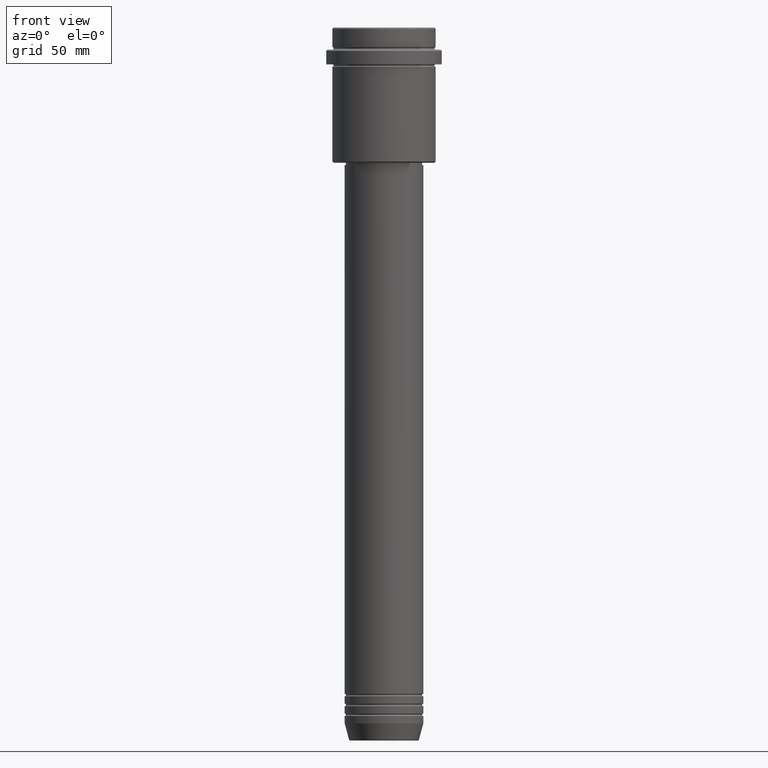
[diagram: clean part render]
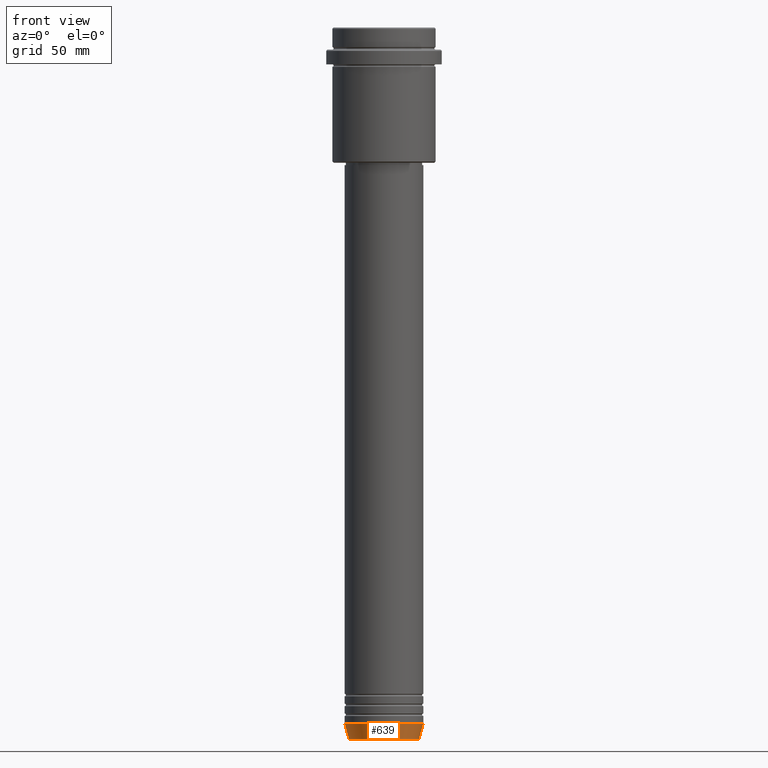
[diagram: same view with one face highlighted and labeled with its STEP entity id]
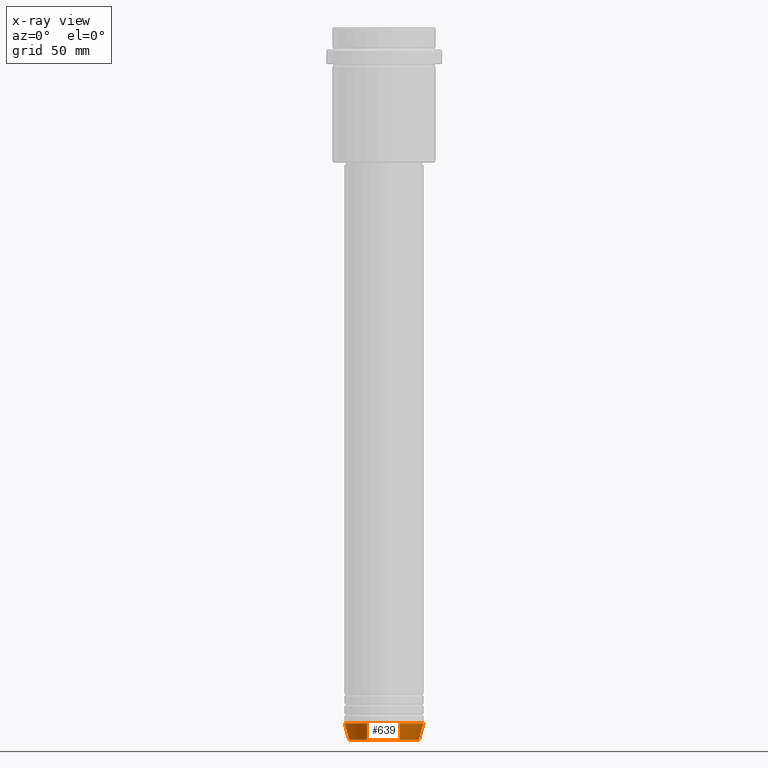
[diagram: x-ray of the same camera — body ghosted, the highlighted face saturated]
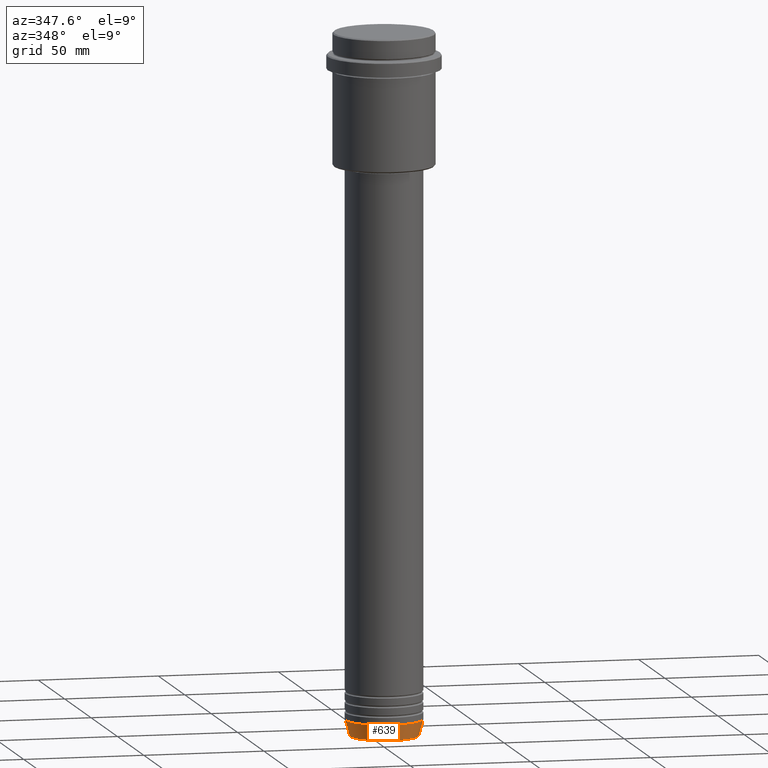
[diagram: same view with one face highlighted and labeled with its STEP entity id]
A machine part, front view. The second image highlights one B-rep face of the part: STEP entity #639.
The next image is the same camera in x-ray: the body ghosted, the highlighted face saturated — about 0% of this face is hidden behind the body in this view.
A second angle (auxiliary view) of the same face is appended — the face is thin or edge-on in the first view.
In plain terms, the highlighted conical surface has half-angle 15 deg.
Its self-contained STEP definition (entity closure, byte-faithful):
#12 = CARTESIAN_POINT ( 'NONE',  ( 0.000000000000000000, 0.000000000000000000, -289.6294095225512137 ) ) ;
#25 = DIRECTION ( 'NONE',  ( -0.000000000000000000, -0.000000000000000000, 1.000000000000000000 ) ) ;
#57 = DIRECTION ( 'NONE',  ( -0.2588190451025213501, 3.169619151431772337E-17, 0.9659258262890680902 ) ) ;
#80 = CARTESIAN_POINT ( 'NONE',  ( -16.00000000000000000, 1.959434878635765131E-15, -283.0000000000000000 ) ) ;
#107 = DIRECTION ( 'NONE',  ( -0.000000000000000000, -0.000000000000000000, 1.000000000000000000 ) ) ;
#113 = CIRCLE ( 'NONE', #463, 14.22365507213718772 ) ;
#197 = CARTESIAN_POINT ( 'NONE',  ( 14.22365507213718772, 0.000000000000000000, -289.6294095225512137 ) ) ;
#263 = CARTESIAN_POINT ( 'NONE',  ( -16.00000000000000000, 1.959434878635765131E-15, -283.0000000000000000 ) ) ;
#329 = ORIENTED_EDGE ( 'NONE', *, *, #1163, .F. ) ;
#337 = CARTESIAN_POINT ( 'NONE',  ( -14.22365507213718772, 1.850665122131323337E-15, -289.6294095225512137 ) ) ;
#390 = VECTOR ( 'NONE', #57, 1000.000000000000000 ) ;
#437 = CONICAL_SURFACE ( 'NONE', #1047, 16.00000000000000000, 0.2617993877991500740 ) ;
#463 = AXIS2_PLACEMENT_3D ( 'NONE', #12, #107, #900 ) ;
#490 = DIRECTION ( 'NONE',  ( 1.000000000000000000, 0.000000000000000000, 0.000000000000000000 ) ) ;
#536 = AXIS2_PLACEMENT_3D ( 'NONE', #582, #25, #1316 ) ;
#543 = EDGE_LOOP ( 'NONE', ( #329, #1033, #1302, #1198 ) ) ;
#577 = EDGE_CURVE ( 'NONE', #904, #698, #1063, .T. ) ;
#582 = CARTESIAN_POINT ( 'NONE',  ( 0.000000000000000000, 0.000000000000000000, -283.0000000000000000 ) ) ;
#598 = LINE ( 'NONE', #263, #390 ) ;
#600 = VECTOR ( 'NONE', #953, 1000.000000000000000 ) ;
#606 = DIRECTION ( 'NONE',  ( -0.000000000000000000, -0.000000000000000000, 1.000000000000000000 ) ) ;
#639 = ADVANCED_FACE ( 'NONE', ( #690 ), #437, .T. ) ;
#687 = EDGE_CURVE ( 'NONE', #978, #904, #113, .T. ) ;
#690 = FACE_OUTER_BOUND ( 'NONE', #543, .T. ) ;
#698 = VERTEX_POINT ( 'NONE', #842 ) ;
#717 = CARTESIAN_POINT ( 'NONE',  ( 16.00000000000000000, 0.000000000000000000, -283.0000000000000000 ) ) ;
#733 = EDGE_CURVE ( 'NONE', #1271, #698, #850, .T. ) ;
#842 = CARTESIAN_POINT ( 'NONE',  ( 16.00000000000000000, 0.000000000000000000, -283.0000000000000000 ) ) ;
#850 = CIRCLE ( 'NONE', #536, 16.00000000000000000 ) ;
#900 = DIRECTION ( 'NONE',  ( 1.000000000000000000, 0.000000000000000000, 0.000000000000000000 ) ) ;
#904 = VERTEX_POINT ( 'NONE', #197 ) ;
#953 = DIRECTION ( 'NONE',  ( 0.2588190451025213501, 0.000000000000000000, 0.9659258262890680902 ) ) ;
#978 = VERTEX_POINT ( 'NONE', #337 ) ;
#1033 = ORIENTED_EDGE ( 'NONE', *, *, #687, .T. ) ;
#1047 = AXIS2_PLACEMENT_3D ( 'NONE', #1124, #606, #490 ) ;
#1063 = LINE ( 'NONE', #717, #600 ) ;
#1124 = CARTESIAN_POINT ( 'NONE',  ( 0.000000000000000000, 0.000000000000000000, -283.0000000000000000 ) ) ;
#1163 = EDGE_CURVE ( 'NONE', #978, #1271, #598, .T. ) ;
#1198 = ORIENTED_EDGE ( 'NONE', *, *, #733, .F. ) ;
#1271 = VERTEX_POINT ( 'NONE', #80 ) ;
#1302 = ORIENTED_EDGE ( 'NONE', *, *, #577, .T. ) ;
#1316 = DIRECTION ( 'NONE',  ( 1.000000000000000000, 0.000000000000000000, 0.000000000000000000 ) ) ;